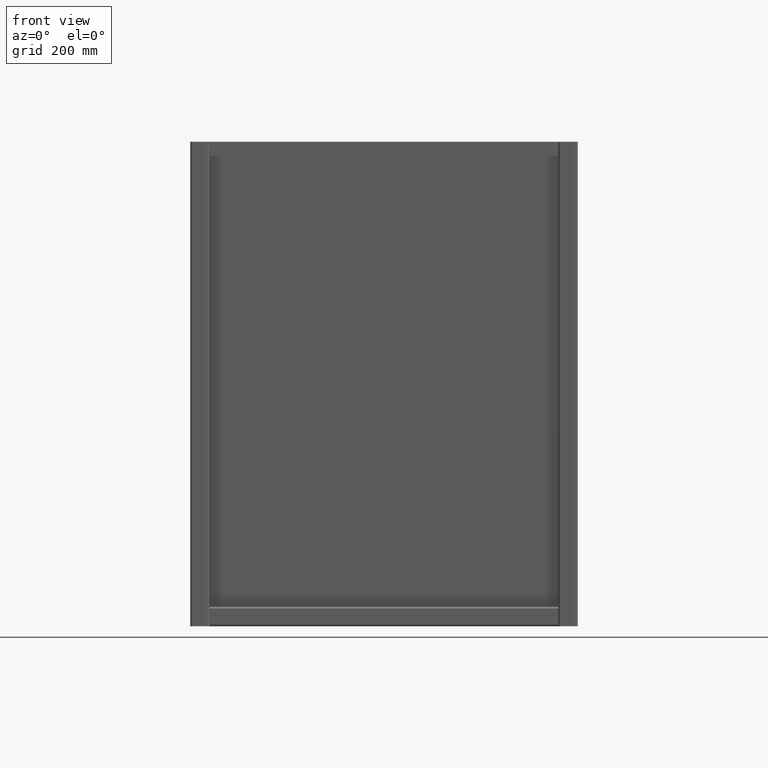
[diagram: clean part render]
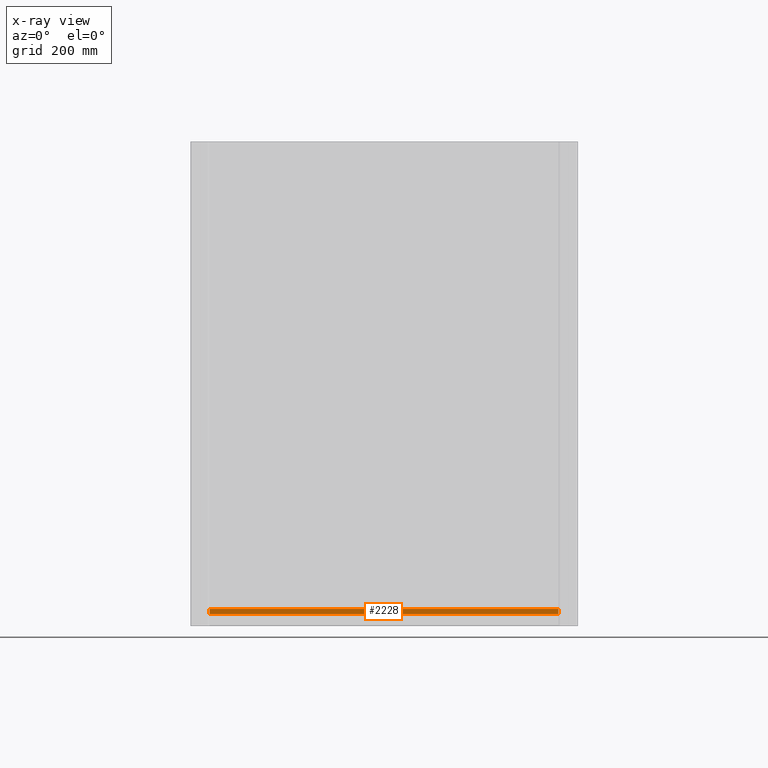
[diagram: x-ray — body ghosted, one internal face saturated and labeled with its STEP entity id]
A machine part, front view, then the same camera in x-ray: the body is ghosted and one INTERNAL B-rep face — a face not visible from any outside direction — is saturated and labeled: STEP entity #2228.
In plain terms, the highlighted planar face has unit normal (0, -1, 0).
Its self-contained STEP definition (entity closure, byte-faithful):
#283 = VERTEX_POINT ( 'NONE', #2250 ) ;
#478 = LINE ( 'NONE', #3020, #4589 ) ;
#1180 = EDGE_CURVE ( 'NONE', #283, #2942, #3612, .T. ) ;
#1463 = CARTESIAN_POINT ( 'NONE',  ( -20.00000000000000000, 15.50000000000494893, 720.0000000000000000 ) ) ;
#1936 = CARTESIAN_POINT ( 'NONE',  ( -20.00000000000000000, 5.100000000000360245, 720.0000000000000000 ) ) ;
#2228 = ADVANCED_FACE ( 'NONE', ( #8986 ), #10147, .F. ) ;
#2250 = CARTESIAN_POINT ( 'NONE',  ( -20.00000000000000000, 15.50000000000494893, 0.000000000000000000 ) ) ;
#2866 = ORIENTED_EDGE ( 'NONE', *, *, #10160, .F. ) ;
#2942 = VERTEX_POINT ( 'NONE', #1463 ) ;
#3020 = CARTESIAN_POINT ( 'NONE',  ( -20.00000000000000000, 17.00000000000180123, 0.000000000000000000 ) ) ;
#3612 = LINE ( 'NONE', #8299, #11362 ) ;
#4234 = VERTEX_POINT ( 'NONE', #6074 ) ;
#4282 = DIRECTION ( 'NONE',  ( 0.000000000000000000, 1.000000000000000000, 0.000000000000000000 ) ) ;
#4589 = VECTOR ( 'NONE', #11121, 1000.000000000000000 ) ;
#4961 = CARTESIAN_POINT ( 'NONE',  ( -20.00000000000000000, 17.00000000000180123, 720.0000000000000000 ) ) ;
#5289 = AXIS2_PLACEMENT_3D ( 'NONE', #8437, #9324, #4282 ) ;
#5522 = DIRECTION ( 'NONE',  ( 0.000000000000000000, 0.000000000000000000, 1.000000000000000000 ) ) ;
#5604 = EDGE_LOOP ( 'NONE', ( #2866, #10657, #10729, #11392 ) ) ;
#5820 = LINE ( 'NONE', #4961, #9687 ) ;
#6074 = CARTESIAN_POINT ( 'NONE',  ( -20.00000000000000000, 5.100000000000360245, 0.000000000000000000 ) ) ;
#6231 = EDGE_CURVE ( 'NONE', #4234, #283, #478, .T. ) ;
#6799 = LINE ( 'NONE', #10544, #10260 ) ;
#7956 = DIRECTION ( 'NONE',  ( 0.000000000000000000, 0.000000000000000000, -1.000000000000000000 ) ) ;
#8299 = CARTESIAN_POINT ( 'NONE',  ( -20.00000000000000000, 15.50000000000494893, 720.0000000000000000 ) ) ;
#8437 = CARTESIAN_POINT ( 'NONE',  ( -20.00000000000000000, 15.50000000000494893, 720.0000000000000000 ) ) ;
#8986 = FACE_OUTER_BOUND ( 'NONE', #5604, .T. ) ;
#9324 = DIRECTION ( 'NONE',  ( 1.000000000000000000, 0.000000000000000000, 0.000000000000000000 ) ) ;
#9687 = VECTOR ( 'NONE', #10458, 1000.000000000000000 ) ;
#10147 = PLANE ( 'NONE',  #5289 ) ;
#10160 = EDGE_CURVE ( 'NONE', #2942, #10238, #5820, .T. ) ;
#10238 = VERTEX_POINT ( 'NONE', #1936 ) ;
#10260 = VECTOR ( 'NONE', #7956, 1000.000000000000000 ) ;
#10458 = DIRECTION ( 'NONE',  ( 0.000000000000000000, -1.000000000000000000, 0.000000000000000000 ) ) ;
#10544 = CARTESIAN_POINT ( 'NONE',  ( -20.00000000000000000, 5.100000000000360245, 720.0000000000000000 ) ) ;
#10657 = ORIENTED_EDGE ( 'NONE', *, *, #1180, .F. ) ;
#10729 = ORIENTED_EDGE ( 'NONE', *, *, #6231, .F. ) ;
#11121 = DIRECTION ( 'NONE',  ( 0.000000000000000000, 1.000000000000000000, 0.000000000000000000 ) ) ;
#11223 = EDGE_CURVE ( 'NONE', #10238, #4234, #6799, .T. ) ;
#11362 = VECTOR ( 'NONE', #5522, 1000.000000000000000 ) ;
#11392 = ORIENTED_EDGE ( 'NONE', *, *, #11223, .F. ) ;